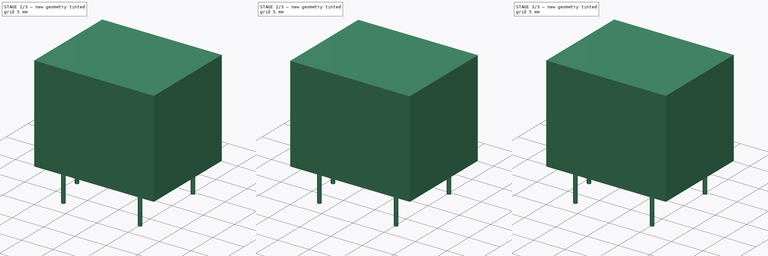
[diagram: build sequence overview — one tinted view per stage of 3, left to right]
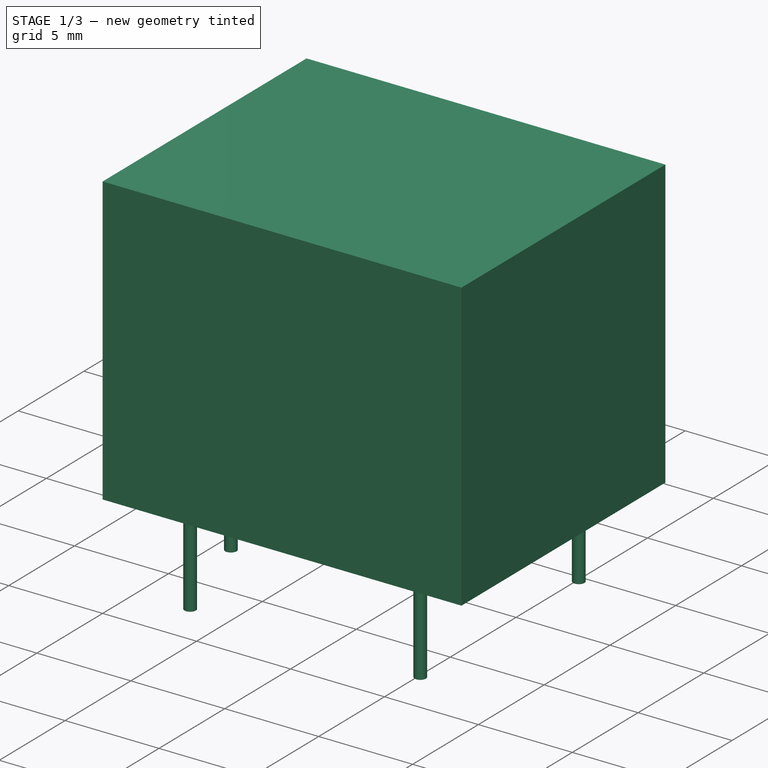
[diagram: stage 1 of 3 — iso view after this stage's code; geometry added in this stage tinted green]
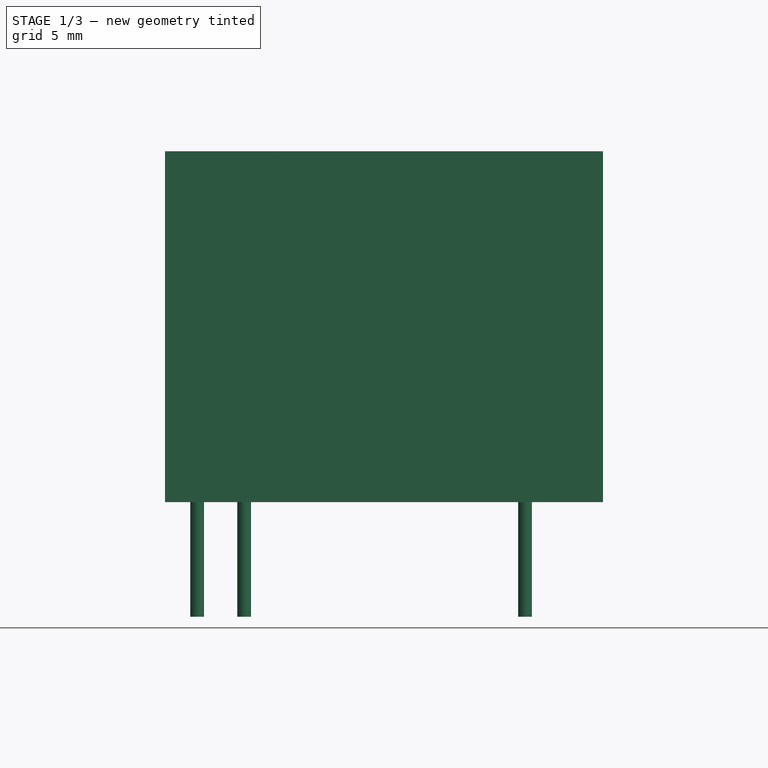
[diagram: stage 1 of 3 — front view after this stage's code; geometry added in this stage tinted green]
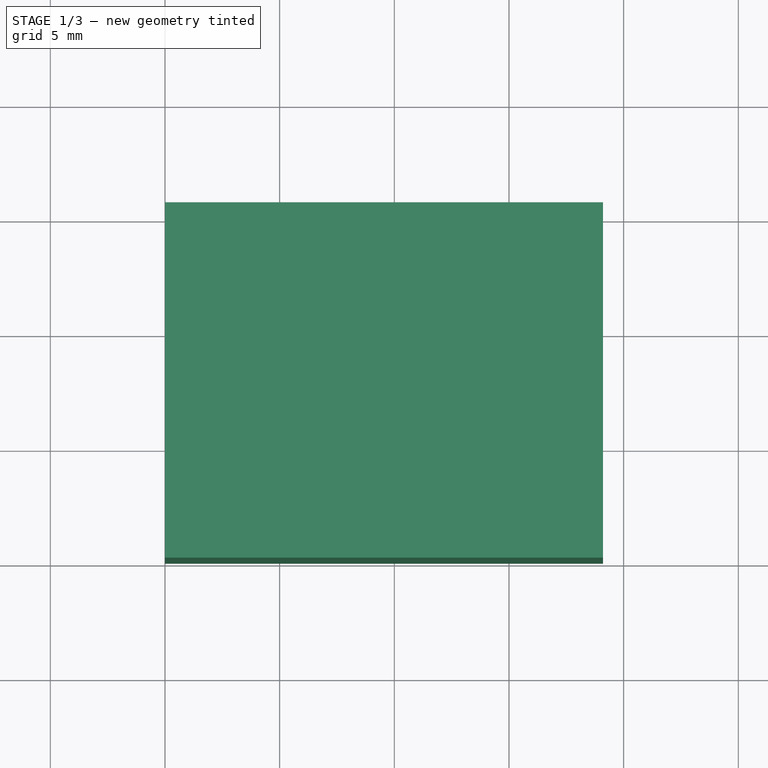
[diagram: stage 1 of 3 — top view after this stage's code; geometry added in this stage tinted green]
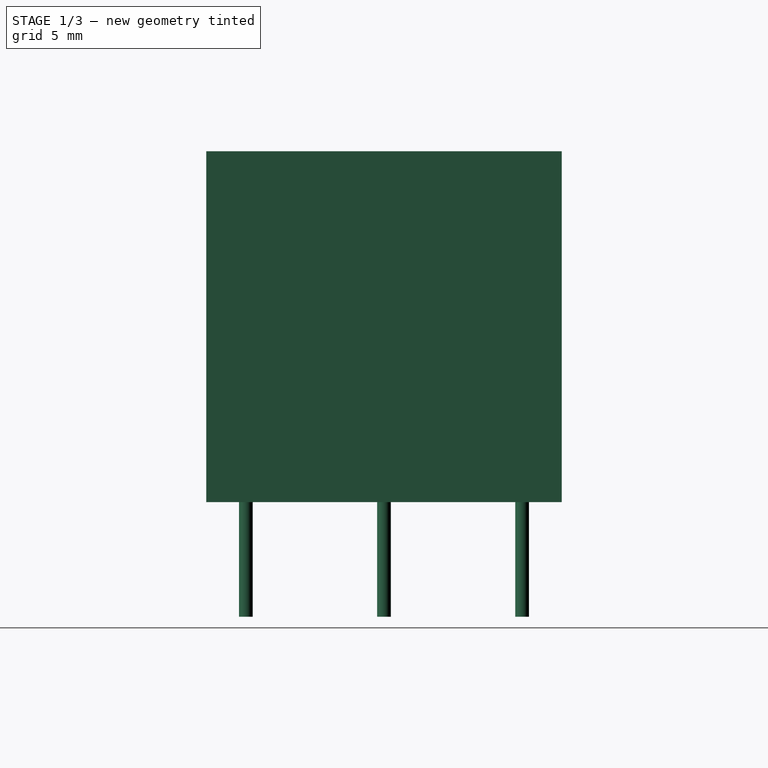
[diagram: stage 1 of 3 — right view after this stage's code; geometry added in this stage tinted green]
FCSTD DOCUMENT  (FreeCAD 0.16R6703 (Git))
Label: SRD-05VDC-SL-C
License: All rights reserved
LicenseURL: http://en.wikipedia.org/wiki/All_rights_reserved
objects: Part::MultiFuse×2, Part::Box×1, Sketcher::SketchObject×1, PartDesign::Pad×1, PartDesign::Fillet×1
note: 7 computed .brp shape members not serialized (recipe doc carries the construction recipe); baked Part::Feature solids carry a one-line shape summary decoded from their .brp

FEATURE [Part::Box] Box  label="Cube"
  Height = 15.3
  Length = 19.1
  Width = 15.5
FEATURE [Sketcher::SketchObject] Sketch
  Placement = pos=(0,0,0) rot=(1,0,0;3.14159rad)
  Support = -> Box [Face5]
  expr: Constraints[11] = 2.05
  sketch-geometry (5):
    g0: Circle CenterX=1.4 CenterY=-7.75 CenterZ=0 NormalX=0 NormalY=0 NormalZ=1 Radius=0.3
    g1: Circle CenterX=3.45 CenterY=-1.725 CenterZ=0 NormalX=0 NormalY=0 NormalZ=1 Radius=0.3
    g2: Circle CenterX=15.7 CenterY=-1.725 CenterZ=0 NormalX=0 NormalY=0 NormalZ=1 Radius=0.3
    g3: Circle CenterX=3.45 CenterY=-13.775 CenterZ=0 NormalX=0 NormalY=0 NormalZ=1 Radius=0.3
    g4: Circle CenterX=15.7 CenterY=-13.775 CenterZ=0 NormalX=0 NormalY=0 NormalZ=1 Radius=0.3
  constraints (15):
    c: Radius(g0) = 0.3
    c: DistanceX(g-1,g0) = 1.4
    c: DistanceY(g0,g-1) = 7.75
    c: Radius(g1) = 0.3
    c: DistanceX(g0,g1) = 2.05
    c: DistanceY(g1,g-1) = 1.725
    c: Radius(g2) = 0.3
    c: DistanceY(g2,g-1) = 1.725
    c: DistanceX(g1,g2) = 12.25
    c: Radius(g3) = 0.3
    c: DistanceY(g3,g1) = 12.05
    c: DistanceX(g0,g3) = 2.05
    c: DistanceX(g3,g4) = 12.25
    c: DistanceY(g4,g2) = 12.05
    c: Radius(g4) = 0.3
FEATURE [PartDesign::Pad] Pad
  Length = 5
  Length2 = 100
  Sketch = -> Sketch
  Type = 0
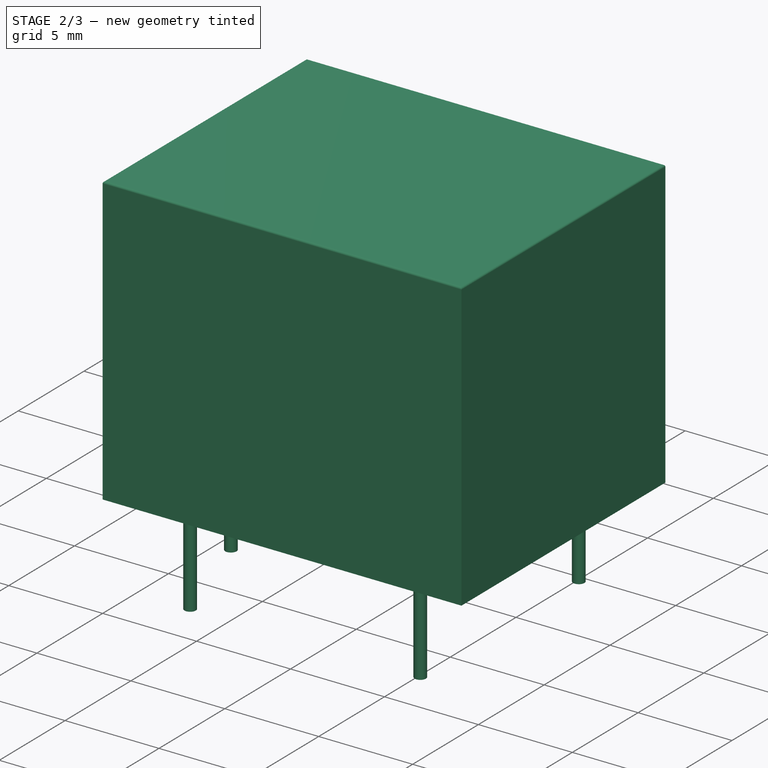
[diagram: stage 2 of 3 — iso view after this stage's code; geometry added in this stage tinted green]
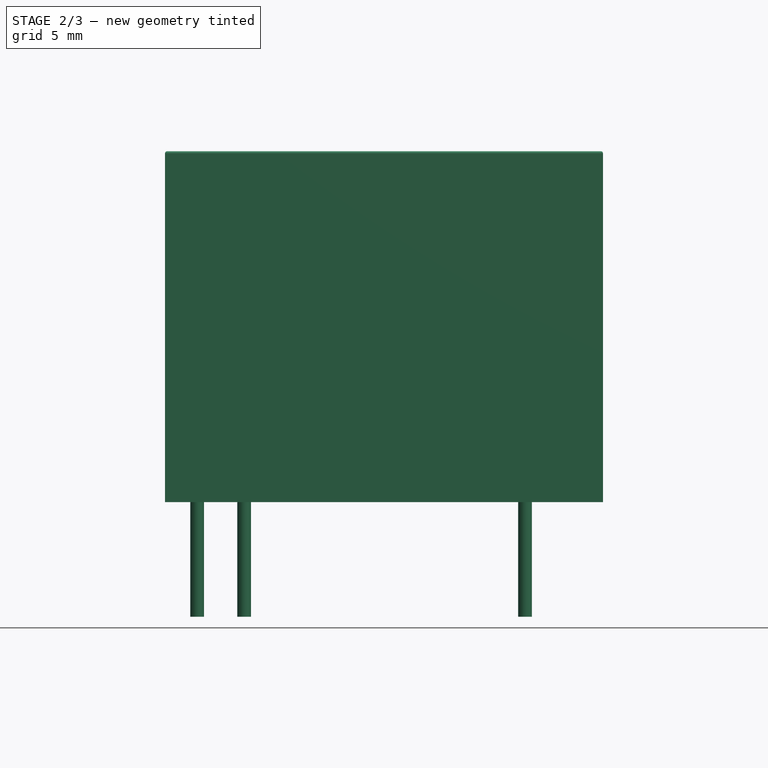
[diagram: stage 2 of 3 — front view after this stage's code; geometry added in this stage tinted green]
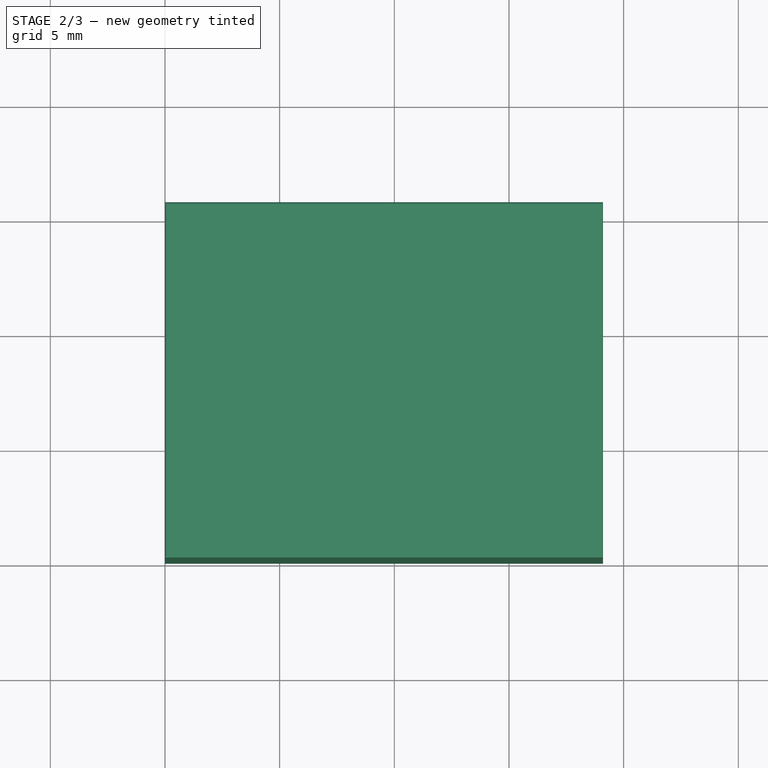
[diagram: stage 2 of 3 — top view after this stage's code; geometry added in this stage tinted green]
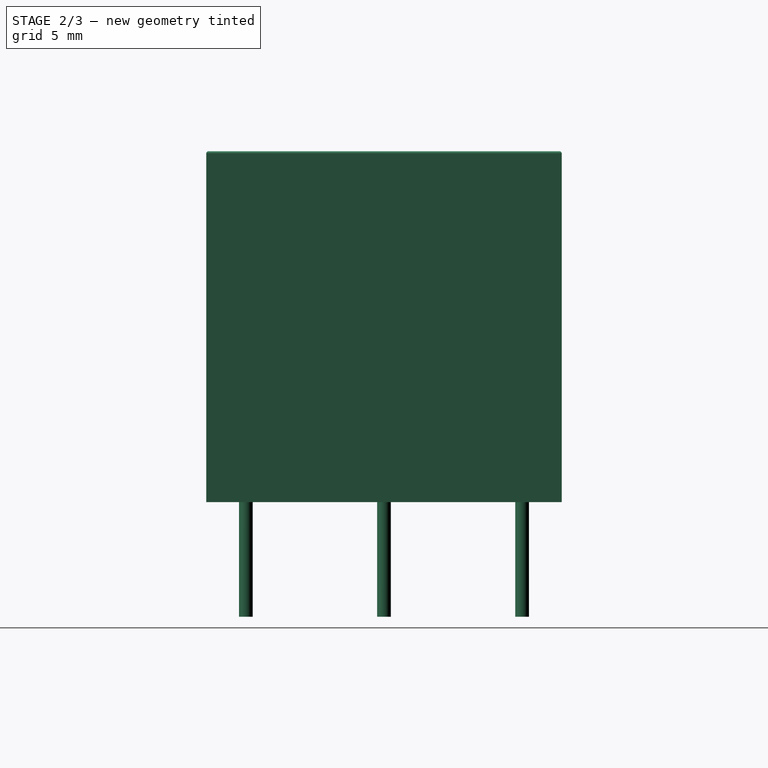
[diagram: stage 2 of 3 — right view after this stage's code; geometry added in this stage tinted green]
FEATURE [PartDesign::Fillet] Fillet
  Base = -> Pad [Edge7,Edge2,Edge8,Edge9]
  Radius = 0.1
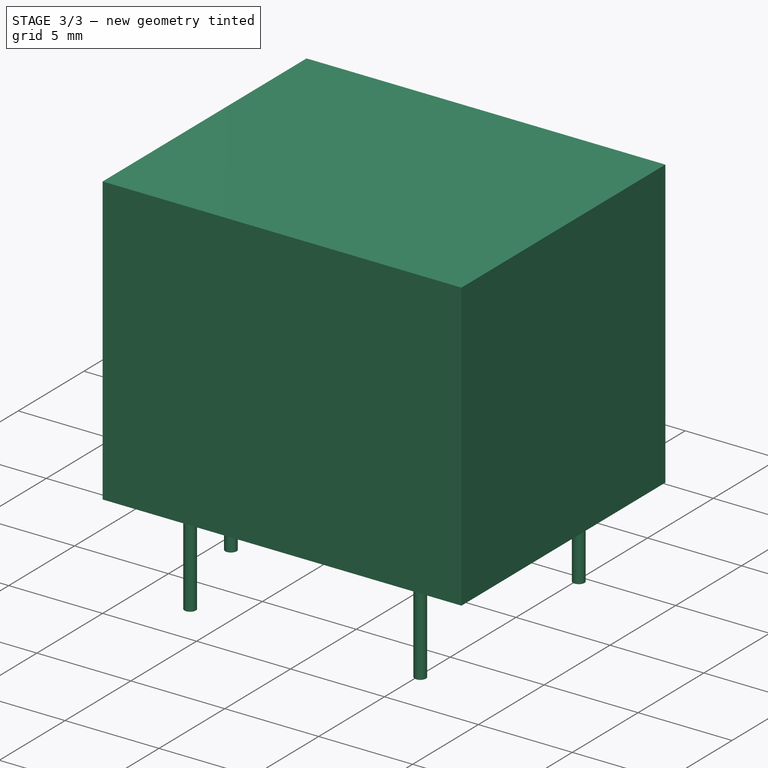
[diagram: stage 3 of 3 — iso view after this stage's code; geometry added in this stage tinted green]
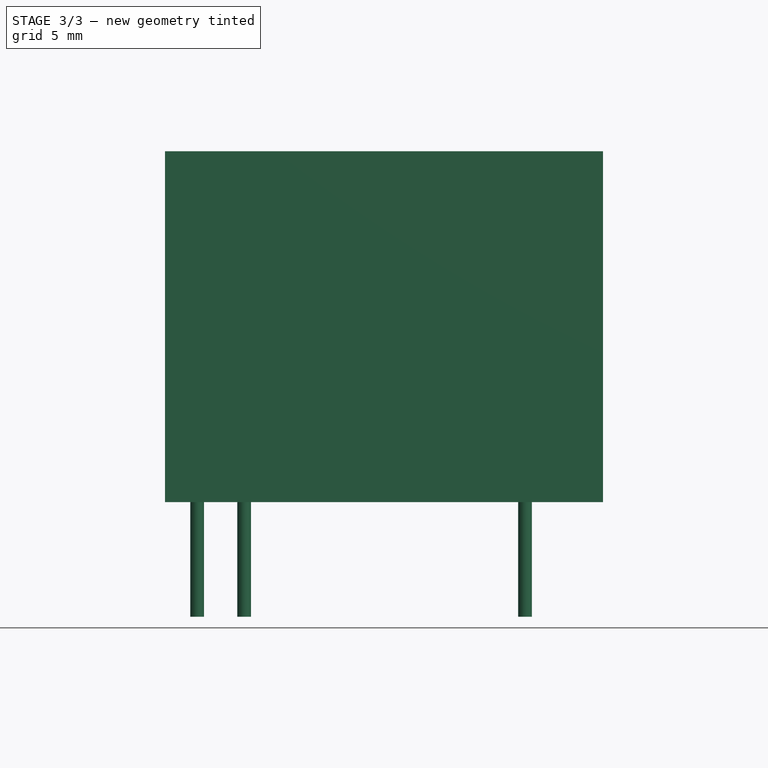
[diagram: stage 3 of 3 — front view after this stage's code; geometry added in this stage tinted green]
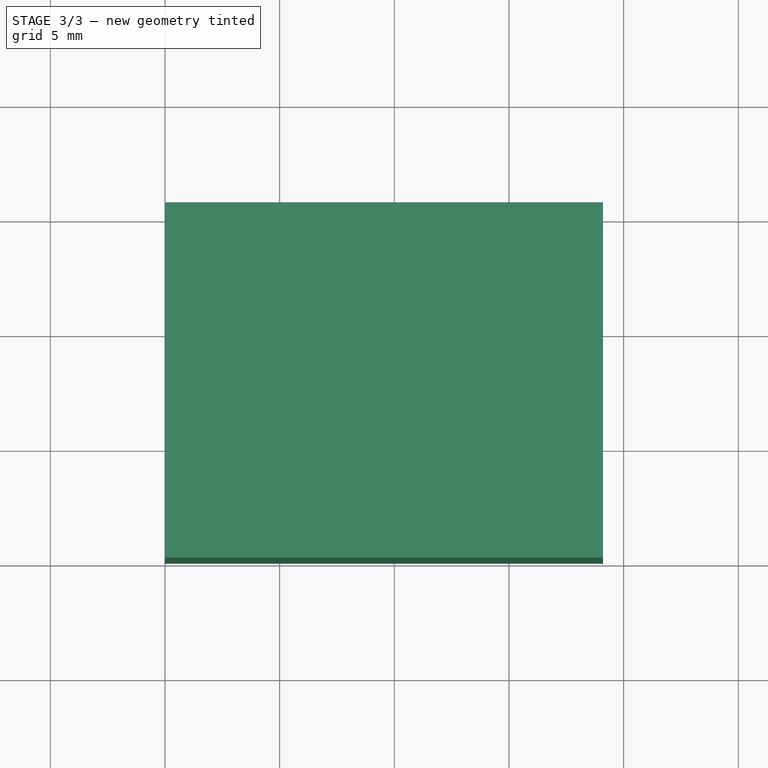
[diagram: stage 3 of 3 — top view after this stage's code; geometry added in this stage tinted green]
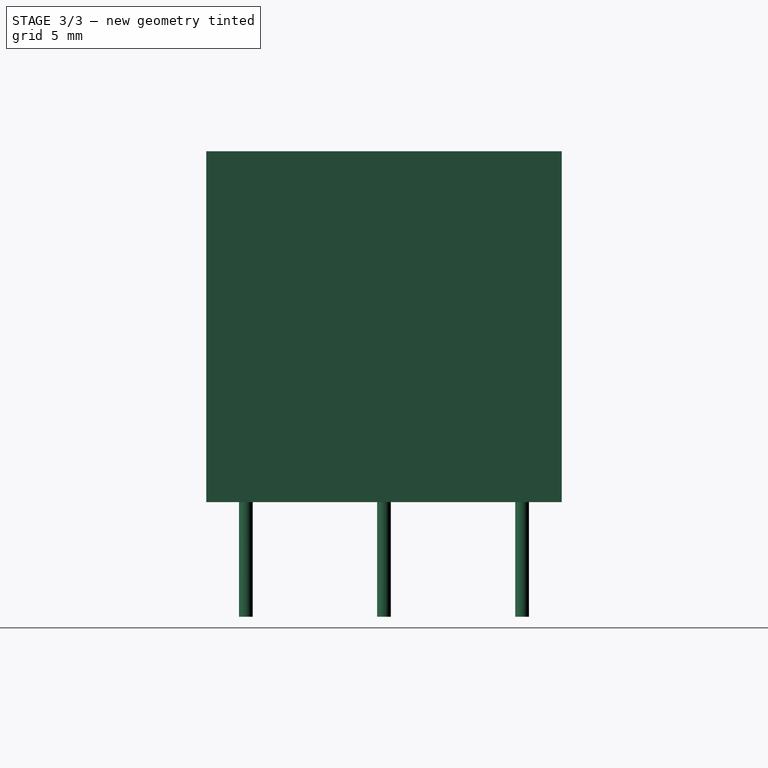
[diagram: stage 3 of 3 — right view after this stage's code; geometry added in this stage tinted green]
FEATURE [Part::MultiFuse] Fusion
  Shapes = -> [Pad,Fillet]
FEATURE [Part::MultiFuse] Fusion001
  Shapes = -> [Box,Fusion]
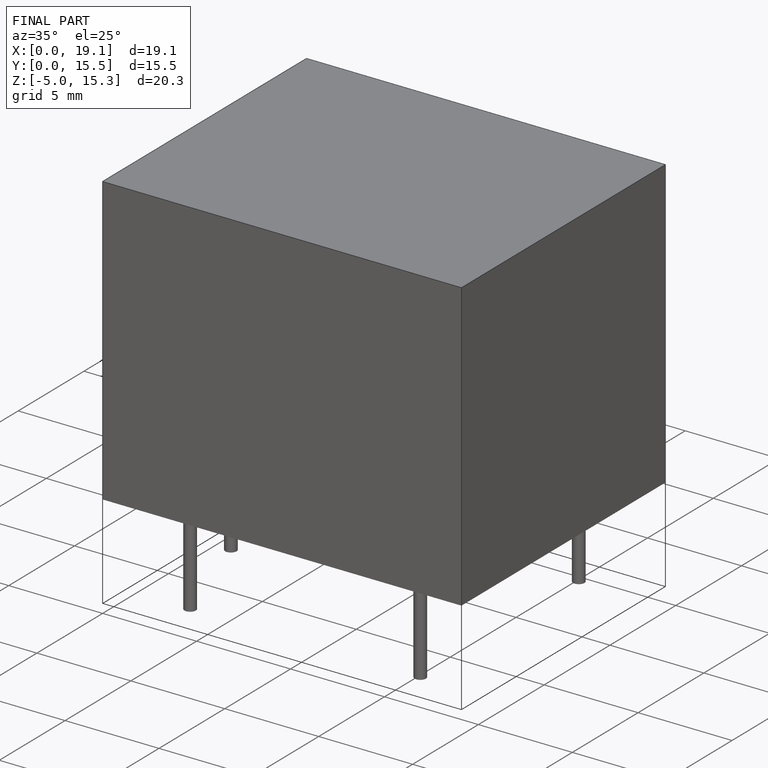
[diagram: finished part — iso view with bounding-box wireframe]
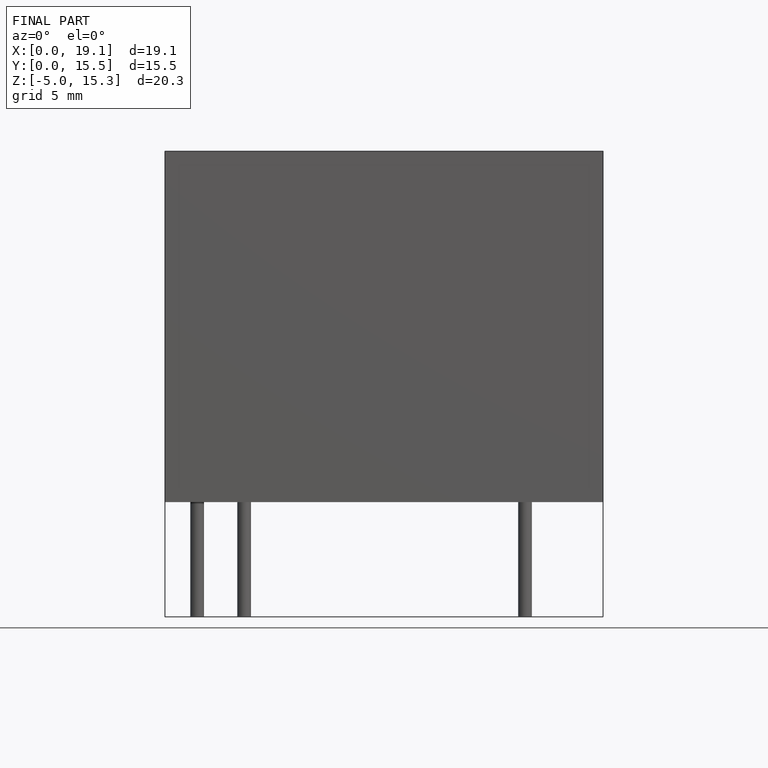
[diagram: finished part — front view with bounding-box wireframe]
